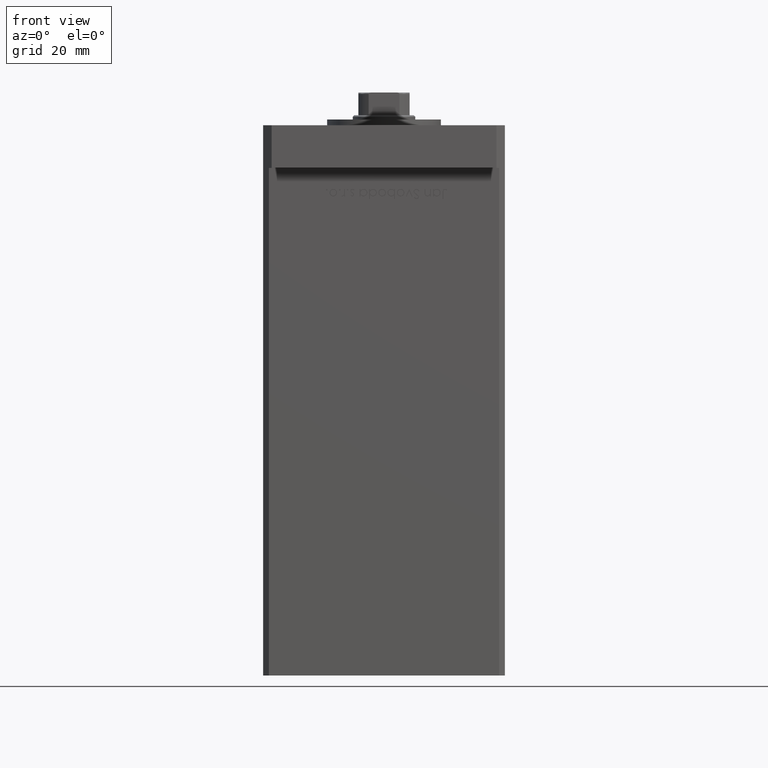
[diagram: clean part render]
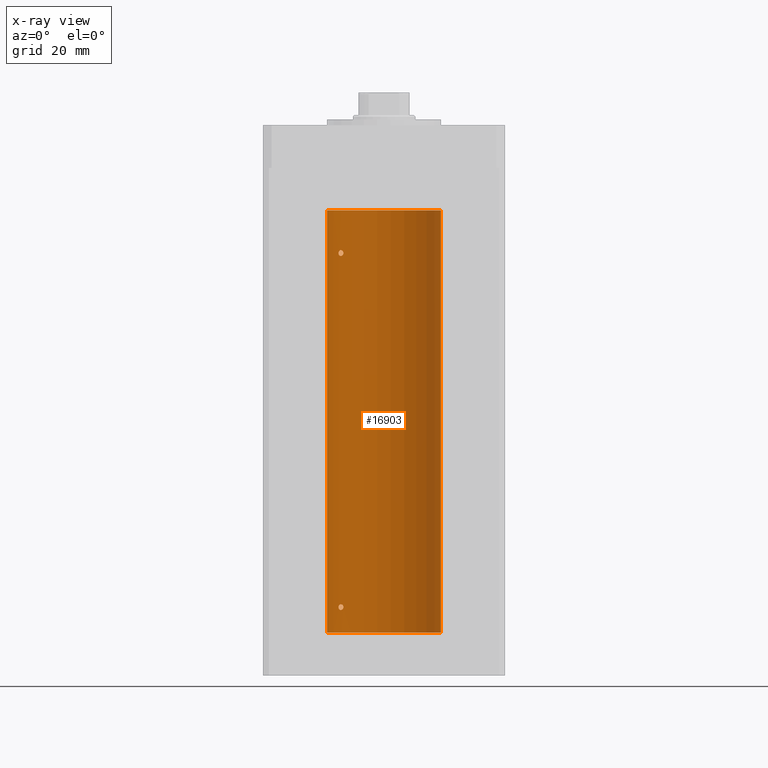
[diagram: x-ray — body ghosted, one internal face saturated and labeled with its STEP entity id]
A machine part, front view, then the same camera in x-ray: the body is ghosted and one INTERNAL B-rep face — a face not visible from any outside direction — is saturated and labeled: STEP entity #16903.
In plain terms, the highlighted cylindrical surface (partial cylindrical patch) has radius 20 mm, axis along (-0, -0, -1).
Its self-contained STEP definition (entity closure, byte-faithful):
#158 = VERTEX_POINT ( 'NONE', #13377 ) ;
#268 = CARTESIAN_POINT ( 'NONE',  ( -15.80861854366320074, 12.25167421322532668, 134.1760529919017131 ) ) ;
#375 = CARTESIAN_POINT ( 'NONE',  ( -16.00000000000000355, 12.00000000000000888, 9.154240719993499198 ) ) ;
#682 = CARTESIAN_POINT ( 'NONE',  ( -14.51590294503182932, 13.75881262167379404, 132.8367812074223764 ) ) ;
#804 = CARTESIAN_POINT ( 'NONE',  ( -15.99999999999999645, 12.00000000000000711, 133.5000000000000000 ) ) ;
#824 = CARTESIAN_POINT ( 'NONE',  ( -20.00000000000000000, 0.000000000000000000, 0.000000000000000000 ) ) ;
#2255 = LINE ( 'NONE', #30713, #46317 ) ;
#3252 = FACE_BOUND ( 'NONE', #11278, .T. ) ;
#3377 = CARTESIAN_POINT ( 'NONE',  ( -20.00000000000000000, 0.000000000000000000, 148.5000000000000000 ) ) ;
#3727 = CARTESIAN_POINT ( 'NONE',  ( -14.31871019372461795, 13.96358505023715679, 8.697478539577899070 ) ) ;
#4433 = CARTESIAN_POINT ( 'NONE',  ( -15.37869370082498044, 12.78737709343839057, 9.984378433483321658 ) ) ;
#4592 = CARTESIAN_POINT ( 'NONE',  ( -14.28285685708573105, 14.00000000000002665, 133.6525126096658767 ) ) ;
#4864 = CARTESIAN_POINT ( 'NONE',  ( -15.28000793038419758, 12.90520882930644042, 134.5021502285312636 ) ) ;
#5724 = AXIS2_PLACEMENT_3D ( 'NONE', #19515, #27644, #32520 ) ;
#5976 = ORIENTED_EDGE ( 'NONE', *, *, #6996, .T. ) ;
#6996 = EDGE_CURVE ( 'NONE', #11051, #47583, #39272, .T. ) ;
#7111 = VERTEX_POINT ( 'NONE', #47621 ) ;
#7279 = DIRECTION ( 'NONE',  ( -0.000000000000000000, 0.000000000000000000, 1.000000000000000000 ) ) ;
#7552 = CARTESIAN_POINT ( 'NONE',  ( 0.000000000000000000, 0.000000000000000000, 148.5000000000000000 ) ) ;
#7585 = FACE_OUTER_BOUND ( 'NONE', #47740, .T. ) ;
#7861 = CARTESIAN_POINT ( 'NONE',  ( -14.31936354392035149, 13.96291496472315785, 133.8044284570273419 ) ) ;
#8057 = CARTESIAN_POINT ( 'NONE',  ( -15.99999999999999645, 12.00000000000000533, 9.000000000000007105 ) ) ;
#8861 = CARTESIAN_POINT ( 'NONE',  ( -14.69070843596623099, 13.57200975233014972, 8.170264738076786770 ) ) ;
#8926 = CARTESIAN_POINT ( 'NONE',  ( -15.99999999999999289, 12.00000000000001243, 133.6542407199934814 ) ) ;
#9040 = CARTESIAN_POINT ( 'NONE',  ( -14.69171503997126571, 13.57092520311232420, 9.830547039779315099 ) ) ;
#9184 = ORIENTED_EDGE ( 'NONE', *, *, #10752, .F. ) ;
#9578 = EDGE_CURVE ( 'NONE', #47583, #45679, #18034, .T. ) ;
#10147 = CARTESIAN_POINT ( 'NONE',  ( -15.37869471769012542, 12.79018928545120204, 132.4951659137118156 ) ) ;
#10507 = CARTESIAN_POINT ( 'NONE',  ( -14.31936354392034616, 13.96291496472316496, 9.304428457027329458 ) ) ;
#10612 = ORIENTED_EDGE ( 'NONE', *, *, #9578, .T. ) ;
#10752 = EDGE_CURVE ( 'NONE', #11051, #21956, #2255, .T. ) ;
#11051 = VERTEX_POINT ( 'NONE', #48248 ) ;
#11278 = EDGE_LOOP ( 'NONE', ( #26091, #46365 ) ) ;
#11664 = CYLINDRICAL_SURFACE ( 'NONE', #5724, 20.00000000000000000 ) ;
#11932 = CARTESIAN_POINT ( 'NONE',  ( -15.65267653428112027, 12.45028749062556983, 134.3454911519633868 ) ) ;
#12201 = CARTESIAN_POINT ( 'NONE',  ( -14.28285685708538111, 14.00000000000032685, 133.4999999999998579 ) ) ;
#12578 = CARTESIAN_POINT ( 'NONE',  ( -14.40763032799400989, 13.87162499441319952, 9.495217475255250505 ) ) ;
#12663 = EDGE_CURVE ( 'NONE', #7111, #158, #38772, .T. ) ;
#12840 = CARTESIAN_POINT ( 'NONE',  ( -15.56338254739985594, 12.56194079578775202, 9.906815049669292605 ) ) ;
#13002 = CARTESIAN_POINT ( 'NONE',  ( -14.51882058315760204, 13.75524947942077958, 134.1587346592185952 ) ) ;
#13239 = EDGE_LOOP ( 'NONE', ( #45704, #43952 ) ) ;
#13287 = DIRECTION ( 'NONE',  ( -0.000000000000000000, 0.000000000000000000, 1.000000000000000000 ) ) ;
#13377 = CARTESIAN_POINT ( 'NONE',  ( -14.28285685708538111, 14.00000000000032685, 133.4999999999998579 ) ) ;
#13956 = CARTESIAN_POINT ( 'NONE',  ( -15.08054978948643488, 13.13774395934156658, 132.5027765441529937 ) ) ;
#14572 = CARTESIAN_POINT ( 'NONE',  ( -14.28285685708537756, 14.00000000000032863, 8.999999999999859668 ) ) ;
#15421 = DIRECTION ( 'NONE',  ( 1.000000000000000000, 0.000000000000000000, 0.000000000000000000 ) ) ;
#15641 = CARTESIAN_POINT ( 'NONE',  ( -15.28000793038418870, 12.90520882930645108, 10.00215022853123870 ) ) ;
#15844 = DIRECTION ( 'NONE',  ( -0.000000000000000000, -0.000000000000000000, -1.000000000000000000 ) ) ;
#16903 = ADVANCED_FACE ( 'NONE', ( #7585, #48513, #3252 ), #11664, .F. ) ;
#16993 = CARTESIAN_POINT ( 'NONE',  ( -15.97265980134107721, 12.03662641108511977, 8.695337314863900602 ) ) ;
#17257 = CARTESIAN_POINT ( 'NONE',  ( -15.37869471769012897, 12.79018928545119671, 7.995165913711809402 ) ) ;
#18002 = CARTESIAN_POINT ( 'NONE',  ( -15.57359523075762908, 12.55100654799543847, 132.5686142754107379 ) ) ;
#18034 = LINE ( 'NONE', #3377, #33315 ) ;
#19515 = CARTESIAN_POINT ( 'NONE',  ( 0.000000000000000000, 0.000000000000000000, 148.5000000000000000 ) ) ;
#20510 = CARTESIAN_POINT ( 'NONE',  ( -14.28285685708575414, 14.00000000000000000, 8.847421050659352915 ) ) ;
#20956 = CARTESIAN_POINT ( 'NONE',  ( -15.65267653428113093, 12.45028749062556450, 9.845491151963438270 ) ) ;
#21198 = EDGE_CURVE ( 'NONE', #50038, #43827, #46586, .T. ) ;
#21230 = CARTESIAN_POINT ( 'NONE',  ( -15.99999999999999645, 12.00000000000000533, 9.000000000000007105 ) ) ;
#21956 = VERTEX_POINT ( 'NONE', #46696 ) ;
#22338 = CARTESIAN_POINT ( 'NONE',  ( -14.78531327857342959, 13.46907986586309924, 132.6090990069115207 ) ) ;
#24378 = CARTESIAN_POINT ( 'NONE',  ( -15.87665094074984573, 12.16298652314402595, 134.0660500660140144 ) ) ;
#24579 = CARTESIAN_POINT ( 'NONE',  ( -14.51590294503183820, 13.75881262167379049, 8.336781207422369278 ) ) ;
#25019 = CARTESIAN_POINT ( 'NONE',  ( -14.98188199575990254, 13.25008090651449244, 9.975236402857763807 ) ) ;
#25175 = CARTESIAN_POINT ( 'NONE',  ( -15.56338254739985949, 12.56194079578775025, 134.4068150496692908 ) ) ;
#25558 = CARTESIAN_POINT ( 'NONE',  ( -15.87665094074984928, 12.16298652314402950, 9.566050066014021525 ) ) ;
#25578 = EDGE_CURVE ( 'NONE', #158, #7111, #34869, .T. ) ;
#26091 = ORIENTED_EDGE ( 'NONE', *, *, #12663, .F. ) ;
#26659 = CARTESIAN_POINT ( 'NONE',  ( -14.31871019372461085, 13.96358505023716212, 133.1974785395779008 ) ) ;
#27440 = B_SPLINE_CURVE_WITH_KNOTS ( 'NONE', 3,
 ( #8057, #49256, #16993, #29451, #50316, #33524, #17257, #45983, #50049, #36791, #8861, #24579, #41926, #3727, #20510, #41123 ),
 .UNSPECIFIED., .F., .F.,
 ( 4, 2, 2, 2, 2, 2, 2, 4 ),
 ( 1.734723475976807094E-18, 0.0004556152471946670057, 0.0009112304943893322767, 0.001822460988778654796, 0.002278076235973315947, 0.002733691483167977315, 0.003189306730362638249, 0.003644921977557299617 ),
 .UNSPECIFIED. ) ;
#27644 = DIRECTION ( 'NONE',  ( -0.000000000000000000, -0.000000000000000000, -1.000000000000000000 ) ) ;
#27821 = CARTESIAN_POINT ( 'NONE',  ( -14.51882058315760027, 13.75524947942078313, 9.658734659218612961 ) ) ;
#28547 = EDGE_CURVE ( 'NONE', #43827, #50038, #27440, .T. ) ;
#28993 = CARTESIAN_POINT ( 'NONE',  ( -14.40763032799402055, 13.87162499441319063, 133.9952174752553162 ) ) ;
#29361 = CARTESIAN_POINT ( 'NONE',  ( -14.78630942130979342, 13.46798002156744545, 9.891415279583984699 ) ) ;
#29451 = CARTESIAN_POINT ( 'NONE',  ( -15.87710824431566614, 12.16238752415382152, 8.434921807322286469 ) ) ;
#29522 = CARTESIAN_POINT ( 'NONE',  ( -14.69171503997127104, 13.57092520311232420, 134.3305470397792760 ) ) ;
#29809 = DIRECTION ( 'NONE',  ( 1.000000000000000000, 0.000000000000000000, 0.000000000000000000 ) ) ;
#29950 = CARTESIAN_POINT ( 'NONE',  ( -14.28285685708538111, 14.00000000000032685, 133.4999999999998579 ) ) ;
#30444 = DIRECTION ( 'NONE',  ( -0.000000000000000000, -0.000000000000000000, -1.000000000000000000 ) ) ;
#30713 = CARTESIAN_POINT ( 'NONE',  ( 20.00000000000000000, 2.449293598294706513E-15, 148.5000000000000000 ) ) ;
#30738 = CARTESIAN_POINT ( 'NONE',  ( -15.99999999999999289, 12.00000000000000888, 133.3456921886414079 ) ) ;
#31085 = CARTESIAN_POINT ( 'NONE',  ( -14.28285685708573460, 14.00000000000003020, 9.152512609665848231 ) ) ;
#32520 = DIRECTION ( 'NONE',  ( -1.000000000000000000, 0.000000000000000000, 0.000000000000000000 ) ) ;
#32791 = CARTESIAN_POINT ( 'NONE',  ( -14.78630942130979697, 13.46798002156743479, 134.3914152795840096 ) ) ;
#33271 = CARTESIAN_POINT ( 'NONE',  ( -15.99999999999999645, 12.00000000000000533, 9.000000000000007105 ) ) ;
#33315 = VECTOR ( 'NONE', #15844, 1000.000000000000000 ) ;
#33524 = CARTESIAN_POINT ( 'NONE',  ( -15.57359523075763086, 12.55100654799543136, 8.068614275410761039 ) ) ;
#34869 = B_SPLINE_CURVE_WITH_KNOTS ( 'NONE', 3,
 ( #12201, #4592, #7861, #28993, #49860, #13002, #49055, #29522, #32791, #46052, #41195, #4864, #45526, #25175, #11932, #268, #24378, #45788, #8926, #804 ),
 .UNSPECIFIED., .F., .F.,
 ( 4, 2, 2, 2, 2, 2, 2, 2, 2, 4 ),
 ( 0.003644921977557289642, 0.004100339128177169119, 0.004328047703487108641, 0.004555756278797049030, 0.005011173429416889910, 0.005466590580036730790, 0.005922007730656571670, 0.006377424881276412549, 0.006832842031896252562, 0.007288259182516093442 ),
 .UNSPECIFIED. ) ;
#36504 = CARTESIAN_POINT ( 'NONE',  ( -15.97258576326346713, 12.03672672663914689, 9.305137409213733335 ) ) ;
#36791 = CARTESIAN_POINT ( 'NONE',  ( -14.78531327857342781, 13.46907986586309569, 8.109099006911460350 ) ) ;
#37811 = CARTESIAN_POINT ( 'NONE',  ( -14.69070843596622922, 13.57200975233015505, 132.6702647380768383 ) ) ;
#38480 = CARTESIAN_POINT ( 'NONE',  ( 0.000000000000000000, 0.000000000000000000, 0.000000000000000000 ) ) ;
#38772 = B_SPLINE_CURVE_WITH_KNOTS ( 'NONE', 3,
 ( #51077, #30738, #47013, #50817, #46480, #18002, #10147, #13956, #51336, #22338, #37811, #682, #50545, #26659, #38869, #29950 ),
 .UNSPECIFIED., .F., .F.,
 ( 4, 2, 2, 2, 2, 2, 2, 4 ),
 ( 0.000000000000000000, 0.0004556152471946448338, 0.0009112304943892896676, 0.001822460988778623354, 0.002278076235973289926, 0.002733691483167956498, 0.003189306730362623070, 0.003644921977557289642 ),
 .UNSPECIFIED. ) ;
#38869 = CARTESIAN_POINT ( 'NONE',  ( -14.28285685708575770, 13.99999999999999822, 133.3474210506593636 ) ) ;
#39272 = CIRCLE ( 'NONE', #41874, 20.00000000000000000 ) ;
#40565 = CARTESIAN_POINT ( 'NONE',  ( -14.44276720520014123, 13.83508275448403957, 9.554048662650284740 ) ) ;
#41123 = CARTESIAN_POINT ( 'NONE',  ( -14.28285685708537756, 14.00000000000032863, 8.999999999999859668 ) ) ;
#41195 = CARTESIAN_POINT ( 'NONE',  ( -15.08229700616151625, 13.13572892147764826, 134.4974307527148198 ) ) ;
#41589 = CARTESIAN_POINT ( 'NONE',  ( -14.28285685708537756, 14.00000000000032863, 8.999999999999859668 ) ) ;
#41829 = CARTESIAN_POINT ( 'NONE',  ( -15.08229700616151270, 13.13572892147766247, 9.997430752714786095 ) ) ;
#41874 = AXIS2_PLACEMENT_3D ( 'NONE', #7552, #7279, #15421 ) ;
#41926 = CARTESIAN_POINT ( 'NONE',  ( -14.43642497935765512, 13.84184969151371547, 8.442053335922931723 ) ) ;
#43827 = VERTEX_POINT ( 'NONE', #33271 ) ;
#43952 = ORIENTED_EDGE ( 'NONE', *, *, #21198, .F. ) ;
#44358 = CARTESIAN_POINT ( 'NONE',  ( -14.56006338825494772, 13.71162570780885126, 9.705357955363320244 ) ) ;
#45526 = CARTESIAN_POINT ( 'NONE',  ( -15.37869370082499110, 12.78737709343838524, 134.4843784334833572 ) ) ;
#45679 = VERTEX_POINT ( 'NONE', #824 ) ;
#45704 = ORIENTED_EDGE ( 'NONE', *, *, #28547, .F. ) ;
#45740 = EDGE_CURVE ( 'NONE', #21956, #45679, #49511, .T. ) ;
#45788 = CARTESIAN_POINT ( 'NONE',  ( -15.97258576326347068, 12.03672672663914867, 133.8051374092137280 ) ) ;
#45895 = CARTESIAN_POINT ( 'NONE',  ( -15.80861854366319719, 12.25167421322532491, 9.676052991901711309 ) ) ;
#45983 = CARTESIAN_POINT ( 'NONE',  ( -15.08054978948644198, 13.13774395934156836, 8.002776544153007876 ) ) ;
#46052 = CARTESIAN_POINT ( 'NONE',  ( -14.98188199575990964, 13.25008090651448178, 134.4752364028577460 ) ) ;
#46317 = VECTOR ( 'NONE', #30444, 1000.000000000000000 ) ;
#46365 = ORIENTED_EDGE ( 'NONE', *, *, #25578, .F. ) ;
#46480 = CARTESIAN_POINT ( 'NONE',  ( -15.80909732170550441, 12.25106527276996182, 132.8244517809013701 ) ) ;
#46586 = B_SPLINE_CURVE_WITH_KNOTS ( 'NONE', 3,
 ( #14572, #31085, #10507, #12578, #40565, #27821, #44358, #9040, #29361, #25019, #41829, #15641, #4433, #12840, #20956, #45895, #25558, #36504, #375, #21230 ),
 .UNSPECIFIED., .F., .F.,
 ( 4, 2, 2, 2, 2, 2, 2, 2, 2, 4 ),
 ( 0.003644921977557299617, 0.004100339128177156109, 0.004328047703487083488, 0.004555756278797011734, 0.005011173429416868226, 0.005466590580036723851, 0.005922007730656580343, 0.006377424881276436835, 0.006832842031896293328, 0.007288259182516148953 ),
 .UNSPECIFIED. ) ;
#46696 = CARTESIAN_POINT ( 'NONE',  ( 20.00000000000000000, 2.449293598294706513E-15, 0.000000000000000000 ) ) ;
#47013 = CARTESIAN_POINT ( 'NONE',  ( -15.97265980134107721, 12.03662641108512332, 133.1953373148639344 ) ) ;
#47538 = CARTESIAN_POINT ( 'NONE',  ( -20.00000000000000000, 0.000000000000000000, 148.5000000000000000 ) ) ;
#47583 = VERTEX_POINT ( 'NONE', #47538 ) ;
#47621 = CARTESIAN_POINT ( 'NONE',  ( -15.99999999999999645, 12.00000000000000711, 133.5000000000000000 ) ) ;
#47740 = EDGE_LOOP ( 'NONE', ( #9184, #5976, #10612, #49745 ) ) ;
#48248 = CARTESIAN_POINT ( 'NONE',  ( 20.00000000000000000, 2.449293598294706513E-15, 148.5000000000000000 ) ) ;
#48513 = FACE_BOUND ( 'NONE', #13239, .T. ) ;
#49055 = CARTESIAN_POINT ( 'NONE',  ( -14.56006338825495483, 13.71162570780885481, 134.2053579553633540 ) ) ;
#49256 = CARTESIAN_POINT ( 'NONE',  ( -16.00000000000000355, 12.00000000000000711, 8.845692188641413267 ) ) ;
#49511 = CIRCLE ( 'NONE', #50403, 20.00000000000000000 ) ;
#49745 = ORIENTED_EDGE ( 'NONE', *, *, #45740, .F. ) ;
#49860 = CARTESIAN_POINT ( 'NONE',  ( -14.44276720520014656, 13.83508275448404312, 134.0540486626502741 ) ) ;
#50038 = VERTEX_POINT ( 'NONE', #41589 ) ;
#50049 = CARTESIAN_POINT ( 'NONE',  ( -14.98166541227929116, 13.25033217142396325, 8.024769614914280425 ) ) ;
#50316 = CARTESIAN_POINT ( 'NONE',  ( -15.80909732170550441, 12.25106527276995649, 8.324451780901410913 ) ) ;
#50403 = AXIS2_PLACEMENT_3D ( 'NONE', #38480, #13287, #29809 ) ;
#50545 = CARTESIAN_POINT ( 'NONE',  ( -14.43642497935765334, 13.84184969151371547, 132.9420533359229069 ) ) ;
#50817 = CARTESIAN_POINT ( 'NONE',  ( -15.87710824431565548, 12.16238752415382507, 132.9349218073222119 ) ) ;
#51077 = CARTESIAN_POINT ( 'NONE',  ( -15.99999999999999645, 12.00000000000000711, 133.5000000000000000 ) ) ;
#51336 = CARTESIAN_POINT ( 'NONE',  ( -14.98166541227928761, 13.25033217142396325, 132.5247696149142769 ) ) ;